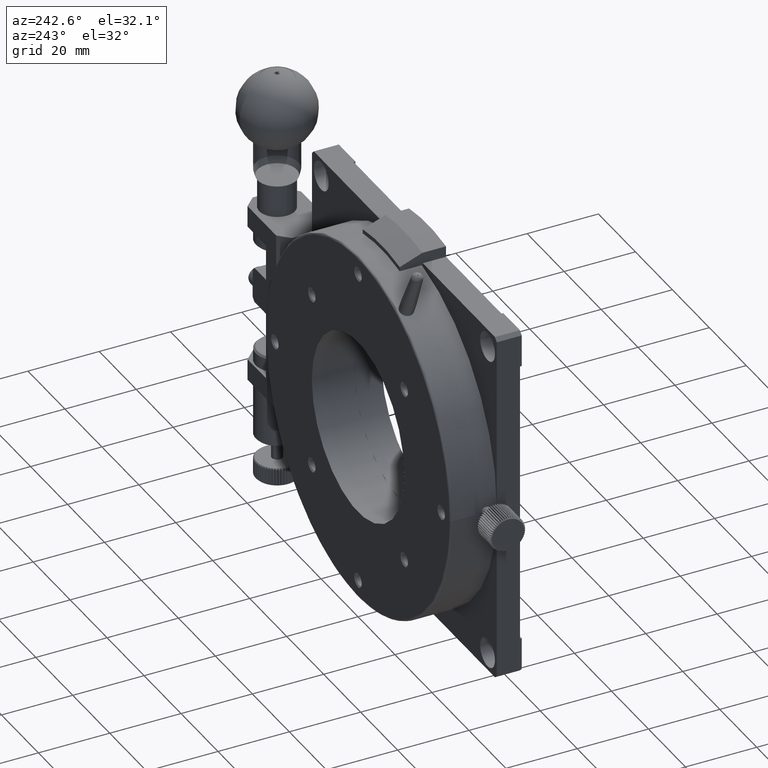
[diagram: clean part render]
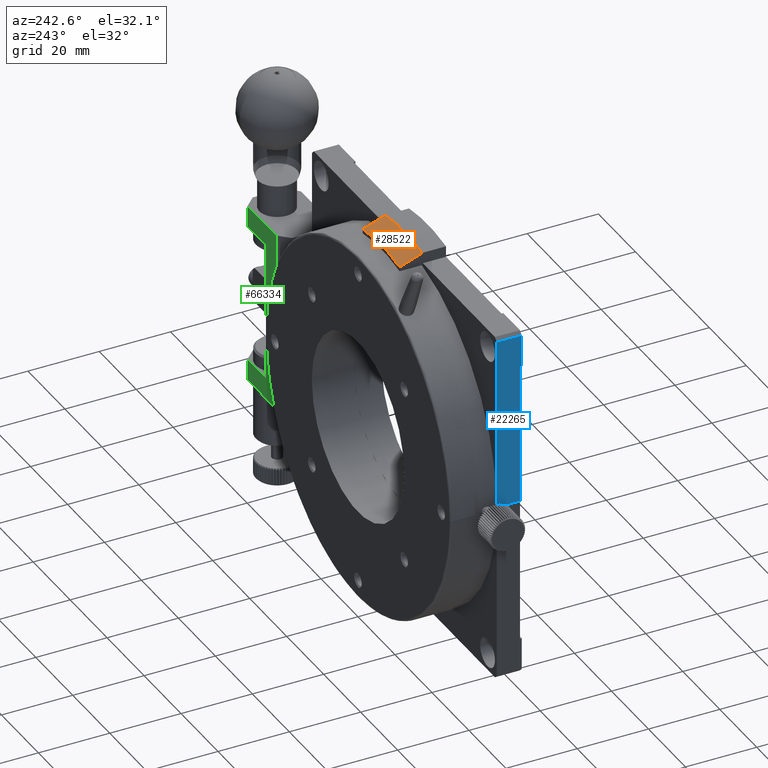
[diagram: same view with three faces highlighted in distinct colors, each labeled with its STEP entity id]
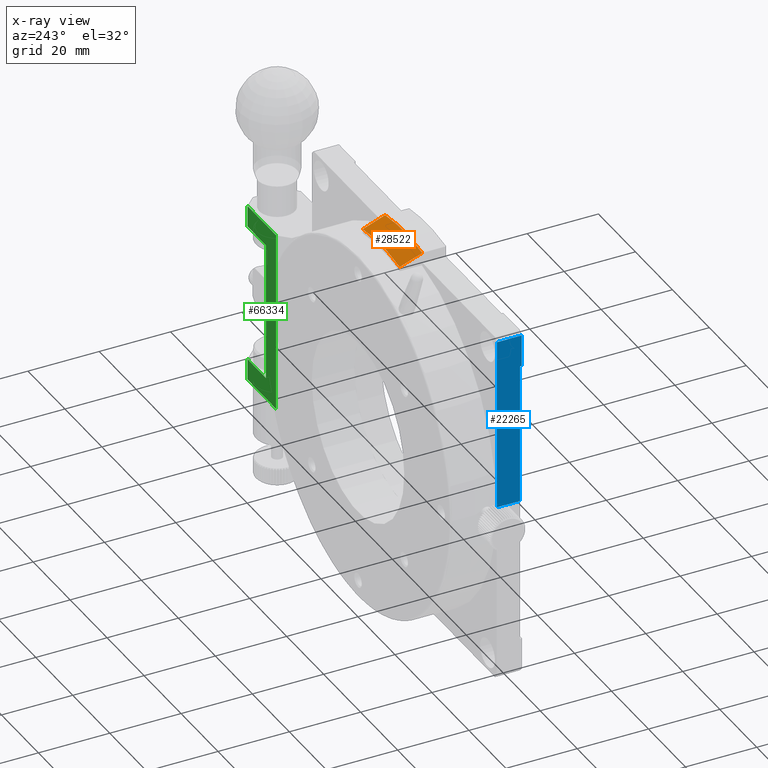
[diagram: x-ray of the same camera — body ghosted, the three highlighted faces saturated]
A machine part, auxiliary view with three faces highlighted in distinct colors.
The next image is the same camera in x-ray (body ghosted, the three faces saturated) — at least one of them is partly hidden behind the body in this view.
Their STEP definitions:

[orange] entity #28522 — the highlighted conical surface has half-angle 20 deg.
#240 = VERTEX_POINT ( 'NONE', #88215 ) ;
#344 = EDGE_CURVE ( 'NONE', #7674, #240, #38973, .T. ) ;
#2834 = CARTESIAN_POINT ( 'NONE',  ( -10.00000000000000000, 11.40492623373130776, 51.48253395153402323 ) ) ;
#7383 = DIRECTION ( 'NONE',  ( 0.000000000000000000, 0.000000000000000000, -1.000000000000000000 ) ) ;
#7554 = ORIENTED_EDGE ( 'NONE', *, *, #62984, .T. ) ;
#7674 = VERTEX_POINT ( 'NONE', #95971 ) ;
#9973 = CIRCLE ( 'NONE', #64506, 51.68198511713315213 ) ;
#10154 = CARTESIAN_POINT ( 'NONE',  ( 0.000000000000000000, 7.214153032672063759, 0.000000000000000000 ) ) ;
#14765 = CARTESIAN_POINT ( 'NONE',  ( 10.00000000000000000, 7.214153032672053101, 53.03531192297674579 ) ) ;
#22011 = DIRECTION ( 'NONE',  ( 0.000000000000000000, -1.000000000000000000, 0.000000000000000000 ) ) ;
#22382 = CARTESIAN_POINT ( 'NONE',  ( -10.00000000000000000, 13.50000000000000533, 50.70530135644174408 ) ) ;
#28522 = ADVANCED_FACE ( 'NONE', ( #76946 ), #88022, .T. ) ;
#29304 = CARTESIAN_POINT ( 'NONE',  ( 0.000000000000000000, 13.50000000000001243, 0.000000000000000000 ) ) ;
#29864 = CARTESIAN_POINT ( 'NONE',  ( 10.00000000000000000, 13.50000000000000533, 50.70530135644174408 ) ) ;
#32567 = DIRECTION ( 'NONE',  ( 0.000000000000000000, -1.000000000000000000, 0.000000000000000000 ) ) ;
#33538 = VERTEX_POINT ( 'NONE', #63273 ) ;
#36189 = EDGE_CURVE ( 'NONE', #240, #33538, #65181, .T. ) ;
#38973 = B_SPLINE_CURVE_WITH_KNOTS ( 'NONE', 3,
 ( #22382, #2834, #75049, #53082 ),
 .UNSPECIFIED., .F., .F.,
 ( 4, 4 ),
 ( 5.204170427930421283E-18, 0.006703791564244136400 ),
 .UNSPECIFIED. ) ;
#40370 = DIRECTION ( 'NONE',  ( 0.000000000000000000, 0.000000000000000000, -1.000000000000000000 ) ) ;
#44510 = CARTESIAN_POINT ( 'NONE',  ( 10.00000000000000000, 9.309634646354963294, 52.25917958909413841 ) ) ;
#49559 = B_SPLINE_CURVE_WITH_KNOTS ( 'NONE', 3,
 ( #14765, #44510, #73306, #29864 ),
 .UNSPECIFIED., .F., .F.,
 ( 4, 4 ),
 ( 3.469446951953614189E-18, 0.006703791564244133798 ),
 .UNSPECIFIED. ) ;
#53082 = CARTESIAN_POINT ( 'NONE',  ( -9.999999999999984013, 7.214153032672054877, 53.03531192297675290 ) ) ;
#54595 = EDGE_LOOP ( 'NONE', ( #90889, #7554, #68027, #85104 ) ) ;
#62984 = EDGE_CURVE ( 'NONE', #33538, #71816, #49559, .T. ) ;
#63265 = DIRECTION ( 'NONE',  ( -0.000000000000000000, 1.000000000000000000, -0.000000000000000000 ) ) ;
#63273 = CARTESIAN_POINT ( 'NONE',  ( 10.00000000000000000, 7.214153032672053101, 53.03531192297674579 ) ) ;
#64506 = AXIS2_PLACEMENT_3D ( 'NONE', #29304, #22011, #7383 ) ;
#65181 = CIRCLE ( 'NONE', #72965, 53.96984631039298819 ) ;
#68027 = ORIENTED_EDGE ( 'NONE', *, *, #69650, .T. ) ;
#69650 = EDGE_CURVE ( 'NONE', #71816, #7674, #9973, .T. ) ;
#71816 = VERTEX_POINT ( 'NONE', #81240 ) ;
#72965 = AXIS2_PLACEMENT_3D ( 'NONE', #93016, #63265, #78339 ) ;
#73306 = CARTESIAN_POINT ( 'NONE',  ( 10.00000000000000000, 11.40492623373131131, 51.48253395153402323 ) ) ;
#75049 = CARTESIAN_POINT ( 'NONE',  ( -10.00000000000000000, 9.309634646354963294, 52.25917958909413841 ) ) ;
#76946 = FACE_OUTER_BOUND ( 'NONE', #54595, .T. ) ;
#78339 = DIRECTION ( 'NONE',  ( 3.552713678800500929E-15, 4.821368582374721934E-17, -1.000000000000000000 ) ) ;
#80195 = AXIS2_PLACEMENT_3D ( 'NONE', #10154, #32567, #40370 ) ;
#81240 = CARTESIAN_POINT ( 'NONE',  ( 10.00000000000000000, 13.50000000000000533, 50.70530135644174408 ) ) ;
#85104 = ORIENTED_EDGE ( 'NONE', *, *, #344, .T. ) ;
#88022 = CONICAL_SURFACE ( 'NONE', #80195, 53.96984631039298819, 0.3490658503988645078 ) ;
#88215 = CARTESIAN_POINT ( 'NONE',  ( -9.999999999999984013, 7.214153032672054877, 53.03531192297675290 ) ) ;
#90889 = ORIENTED_EDGE ( 'NONE', *, *, #36189, .T. ) ;
#93016 = CARTESIAN_POINT ( 'NONE',  ( 0.000000000000000000, 7.214153032672060206, 0.000000000000000000 ) ) ;
#95971 = CARTESIAN_POINT ( 'NONE',  ( -10.00000000000000000, 13.50000000000000533, 50.70530135644174408 ) ) ;

[blue] entity #22265 — the highlighted planar face has unit normal (1, 0, 0).
#290 = CARTESIAN_POINT ( 'NONE',  ( -49.99773725805609814, 7.000000000000000888, -49.00042980575020124 ) ) ;
#2345 = FACE_OUTER_BOUND ( 'NONE', #12652, .T. ) ;
#2629 = ORIENTED_EDGE ( 'NONE', *, *, #35590, .T. ) ;
#4270 = CARTESIAN_POINT ( 'NONE',  ( -49.99773725805609104, 0.5000000000000004441, 0.4756774898927784712 ) ) ;
#4326 = VERTEX_POINT ( 'NONE', #14967 ) ;
#6185 = EDGE_CURVE ( 'NONE', #21113, #82262, #56156, .T. ) ;
#6848 = VERTEX_POINT ( 'NONE', #4270 ) ;
#7593 = DIRECTION ( 'NONE',  ( -0.000000000000000000, -0.000000000000000000, 1.000000000000000000 ) ) ;
#10166 = VECTOR ( 'NONE', #39227, 1000.000000000000000 ) ;
#12652 = EDGE_LOOP ( 'NONE', ( #25982, #60914, #18307, #92762, #2629, #27159 ) ) ;
#14967 = CARTESIAN_POINT ( 'NONE',  ( -49.99773725805609104, 6.999999999999999112, 0.4756774898927791928 ) ) ;
#18307 = ORIENTED_EDGE ( 'NONE', *, *, #77176, .F. ) ;
#21113 = VERTEX_POINT ( 'NONE', #29298 ) ;
#22265 = ADVANCED_FACE ( 'NONE', ( #2345 ), #53068, .F. ) ;
#22857 = DIRECTION ( 'NONE',  ( 0.000000000000000000, 0.000000000000000000, -1.000000000000000000 ) ) ;
#23605 = EDGE_CURVE ( 'NONE', #38609, #21113, #75762, .T. ) ;
#25010 = DIRECTION ( 'NONE',  ( 0.000000000000000000, 1.000000000000000000, 0.000000000000000000 ) ) ;
#25982 = ORIENTED_EDGE ( 'NONE', *, *, #23605, .F. ) ;
#27159 = ORIENTED_EDGE ( 'NONE', *, *, #6185, .F. ) ;
#29135 = VECTOR ( 'NONE', #46202, 1000.000000000000000 ) ;
#29298 = CARTESIAN_POINT ( 'NONE',  ( -49.99773725805609814, 0.000000000000000000, 40.00000000000000711 ) ) ;
#30014 = VECTOR ( 'NONE', #61618, 1000.000000000000000 ) ;
#30048 = CARTESIAN_POINT ( 'NONE',  ( -49.99773725805609814, 0.5000000000000000000, 40.00000000000000000 ) ) ;
#35590 = EDGE_CURVE ( 'NONE', #6848, #82262, #38310, .T. ) ;
#38310 = LINE ( 'NONE', #74922, #60320 ) ;
#38609 = VERTEX_POINT ( 'NONE', #92632 ) ;
#39227 = DIRECTION ( 'NONE',  ( -0.000000000000000000, 1.000000000000000000, -0.000000000000000000 ) ) ;
#46202 = DIRECTION ( 'NONE',  ( 0.000000000000000000, -1.000000000000000000, -0.000000000000000000 ) ) ;
#47587 = EDGE_CURVE ( 'NONE', #65379, #38609, #61786, .T. ) ;
#50230 = AXIS2_PLACEMENT_3D ( 'NONE', #82347, #82825, #22857 ) ;
#53068 = PLANE ( 'NONE',  #50230 ) ;
#56156 = LINE ( 'NONE', #91858, #63740 ) ;
#59878 = CARTESIAN_POINT ( 'NONE',  ( -49.99773725805609814, 2.500000000000000000, 48.99957019424980587 ) ) ;
#60320 = VECTOR ( 'NONE', #75385, 1000.000000000000000 ) ;
#60346 = CARTESIAN_POINT ( 'NONE',  ( -49.99773725805609814, 7.000000000000001776, 48.99957019424980587 ) ) ;
#60914 = ORIENTED_EDGE ( 'NONE', *, *, #47587, .F. ) ;
#61618 = DIRECTION ( 'NONE',  ( 0.000000000000000000, 0.000000000000000000, -1.000000000000000000 ) ) ;
#61786 = LINE ( 'NONE', #59878, #29135 ) ;
#63740 = VECTOR ( 'NONE', #25010, 1000.000000000000000 ) ;
#64657 = EDGE_CURVE ( 'NONE', #6848, #4326, #85508, .T. ) ;
#64864 = VECTOR ( 'NONE', #7593, 1000.000000000000000 ) ;
#65379 = VERTEX_POINT ( 'NONE', #60346 ) ;
#68003 = CARTESIAN_POINT ( 'NONE',  ( -49.99773725805609814, 0.000000000000000000, -49.00042980575020124 ) ) ;
#74922 = CARTESIAN_POINT ( 'NONE',  ( -49.99773725805609814, 0.5000000000000000000, 0.000000000000000000 ) ) ;
#75385 = DIRECTION ( 'NONE',  ( 0.000000000000000000, -0.000000000000000000, 1.000000000000000000 ) ) ;
#75762 = LINE ( 'NONE', #68003, #30014 ) ;
#76284 = CARTESIAN_POINT ( 'NONE',  ( -49.99773725805607683, -50.00000000000000000, 0.4756774898937063956 ) ) ;
#77176 = EDGE_CURVE ( 'NONE', #4326, #65379, #84113, .T. ) ;
#82262 = VERTEX_POINT ( 'NONE', #30048 ) ;
#82347 = CARTESIAN_POINT ( 'NONE',  ( -49.99773725805609814, 2.500000000000000000, -49.00042980575020124 ) ) ;
#82825 = DIRECTION ( 'NONE',  ( 1.000000000000000000, 0.000000000000000000, 0.000000000000000000 ) ) ;
#84113 = LINE ( 'NONE', #290, #64864 ) ;
#85508 = LINE ( 'NONE', #76284, #10166 ) ;
#91858 = CARTESIAN_POINT ( 'NONE',  ( -49.99773725805609814, 0.5000000000000000000, 40.00000000000000000 ) ) ;
#92632 = CARTESIAN_POINT ( 'NONE',  ( -49.99773725805609814, -2.891205793294678326E-16, 48.99957019424980587 ) ) ;
#92762 = ORIENTED_EDGE ( 'NONE', *, *, #64657, .F. ) ;

[green] entity #66334 — the highlighted planar face has unit normal (0, -1, 0).
#2 = ORIENTED_EDGE ( 'NONE', *, *, #69930, .F. ) ;
#127 = CARTESIAN_POINT ( 'NONE',  ( 68.50000000000000000, 15.50000000000000000, -25.50000000000000355 ) ) ;
#419 = CARTESIAN_POINT ( 'NONE',  ( 68.50000000000000000, 15.50000000000000000, 25.50000000000000355 ) ) ;
#1513 = VECTOR ( 'NONE', #36561, 1000.000000000000000 ) ;
#2802 = VERTEX_POINT ( 'NONE', #86007 ) ;
#5335 = DIRECTION ( 'NONE',  ( -1.000000000000000000, -0.000000000000000000, 0.000000000000000000 ) ) ;
#6109 = DIRECTION ( 'NONE',  ( -1.000000000000000000, -0.000000000000000000, 0.000000000000000000 ) ) ;
#9176 = CARTESIAN_POINT ( 'NONE',  ( 68.50000000000000000, 15.50000000000000000, 25.50000000000000355 ) ) ;
#11125 = ORIENTED_EDGE ( 'NONE', *, *, #86670, .F. ) ;
#13472 = CARTESIAN_POINT ( 'NONE',  ( 53.00000000000009948, 15.49999999999999822, 25.50000000000000355 ) ) ;
#13624 = CARTESIAN_POINT ( 'NONE',  ( 53.00000000000009948, 15.50000000000000000, 25.50000000000000355 ) ) ;
#13862 = VERTEX_POINT ( 'NONE', #9176 ) ;
#17294 = ORIENTED_EDGE ( 'NONE', *, *, #33020, .F. ) ;
#17903 = CARTESIAN_POINT ( 'NONE',  ( 68.50000000000000000, 15.50000000000000000, -19.49999999999999645 ) ) ;
#18057 = ORIENTED_EDGE ( 'NONE', *, *, #22157, .T. ) ;
#20719 = EDGE_LOOP ( 'NONE', ( #30261, #20802, #18057, #74338, #94890, #11125, #17294, #2 ) ) ;
#20802 = ORIENTED_EDGE ( 'NONE', *, *, #74869, .T. ) ;
#20889 = CARTESIAN_POINT ( 'NONE',  ( 0.000000000000000000, 15.50000000000000000, 25.50000000000000355 ) ) ;
#21443 = LINE ( 'NONE', #66836, #1513 ) ;
#22157 = EDGE_CURVE ( 'NONE', #39345, #67662, #28720, .T. ) ;
#22348 = LINE ( 'NONE', #419, #50225 ) ;
#27534 = LINE ( 'NONE', #34374, #94811 ) ;
#28720 = LINE ( 'NONE', #13624, #44004 ) ;
#29171 = CARTESIAN_POINT ( 'NONE',  ( 68.50000000000000000, 15.50000000000000000, 25.50000000000000355 ) ) ;
#30261 = ORIENTED_EDGE ( 'NONE', *, *, #54156, .F. ) ;
#33020 = EDGE_CURVE ( 'NONE', #46557, #92509, #61097, .T. ) ;
#34374 = CARTESIAN_POINT ( 'NONE',  ( 58.50000000000000000, 15.50000000000000000, 19.50000000000000000 ) ) ;
#35321 = VECTOR ( 'NONE', #76657, 1000.000000000000000 ) ;
#36561 = DIRECTION ( 'NONE',  ( -0.000000000000000000, 0.000000000000000000, 1.000000000000000000 ) ) ;
#37567 = VERTEX_POINT ( 'NONE', #17903 ) ;
#39345 = VERTEX_POINT ( 'NONE', #73469 ) ;
#43370 = DIRECTION ( 'NONE',  ( -0.000000000000000000, 0.000000000000000000, 1.000000000000000000 ) ) ;
#44004 = VECTOR ( 'NONE', #43370, 1000.000000000000000 ) ;
#45280 = DIRECTION ( 'NONE',  ( 0.000000000000000000, -0.000000000000000000, -1.000000000000000000 ) ) ;
#46557 = VERTEX_POINT ( 'NONE', #56841 ) ;
#50003 = CARTESIAN_POINT ( 'NONE',  ( 0.000000000000000000, 15.50000000000000000, -25.50000000000000355 ) ) ;
#50225 = VECTOR ( 'NONE', #74034, 1000.000000000000000 ) ;
#51156 = LINE ( 'NONE', #20889, #58775 ) ;
#53551 = CARTESIAN_POINT ( 'NONE',  ( 73.50000000000000000, 15.50000000000000000, -19.50000000000000000 ) ) ;
#54156 = EDGE_CURVE ( 'NONE', #74240, #37567, #22348, .T. ) ;
#55130 = VECTOR ( 'NONE', #68215, 1000.000000000000000 ) ;
#56841 = CARTESIAN_POINT ( 'NONE',  ( 58.50000000000000000, 15.50000000000000000, -19.49999999999999645 ) ) ;
#58775 = VECTOR ( 'NONE', #5335, 1000.000000000000000 ) ;
#59369 = EDGE_CURVE ( 'NONE', #13862, #67662, #51156, .T. ) ;
#61097 = LINE ( 'NONE', #84480, #35321 ) ;
#66334 = ADVANCED_FACE ( 'NONE', ( #66766 ), #96544, .F. ) ;
#66766 = FACE_OUTER_BOUND ( 'NONE', #20719, .T. ) ;
#66836 = CARTESIAN_POINT ( 'NONE',  ( 68.50000000000000000, 15.50000000000000000, 25.50000000000000355 ) ) ;
#67662 = VERTEX_POINT ( 'NONE', #13472 ) ;
#68215 = DIRECTION ( 'NONE',  ( -1.000000000000000000, -0.000000000000000000, 0.000000000000000000 ) ) ;
#69930 = EDGE_CURVE ( 'NONE', #37567, #46557, #90156, .T. ) ;
#70965 = DIRECTION ( 'NONE',  ( 1.000000000000000000, -0.000000000000000000, 0.000000000000000000 ) ) ;
#73397 = LINE ( 'NONE', #50003, #86449 ) ;
#73469 = CARTESIAN_POINT ( 'NONE',  ( 53.00000000000009948, 15.49999999999999822, -25.50000000000000355 ) ) ;
#74034 = DIRECTION ( 'NONE',  ( -0.000000000000000000, 0.000000000000000000, 1.000000000000000000 ) ) ;
#74240 = VERTEX_POINT ( 'NONE', #127 ) ;
#74338 = ORIENTED_EDGE ( 'NONE', *, *, #59369, .F. ) ;
#74869 = EDGE_CURVE ( 'NONE', #74240, #39345, #73397, .T. ) ;
#75211 = AXIS2_PLACEMENT_3D ( 'NONE', #29171, #88192, #45280 ) ;
#76657 = DIRECTION ( 'NONE',  ( -0.000000000000000000, -0.000000000000000000, 1.000000000000000000 ) ) ;
#84480 = CARTESIAN_POINT ( 'NONE',  ( 58.50000000000000000, 15.50000000000000000, -19.50000000000000000 ) ) ;
#86007 = CARTESIAN_POINT ( 'NONE',  ( 68.50000000000000000, 15.50000000000000000, 19.50000000000000000 ) ) ;
#86449 = VECTOR ( 'NONE', #6109, 1000.000000000000000 ) ;
#86670 = EDGE_CURVE ( 'NONE', #92509, #2802, #27534, .T. ) ;
#88192 = DIRECTION ( 'NONE',  ( 0.000000000000000000, -1.000000000000000000, 0.000000000000000000 ) ) ;
#89030 = EDGE_CURVE ( 'NONE', #2802, #13862, #21443, .T. ) ;
#90156 = LINE ( 'NONE', #53551, #55130 ) ;
#92509 = VERTEX_POINT ( 'NONE', #96115 ) ;
#94811 = VECTOR ( 'NONE', #70965, 1000.000000000000000 ) ;
#94890 = ORIENTED_EDGE ( 'NONE', *, *, #89030, .F. ) ;
#96115 = CARTESIAN_POINT ( 'NONE',  ( 58.50000000000000000, 15.50000000000000000, 19.50000000000000000 ) ) ;
#96544 = PLANE ( 'NONE',  #75211 ) ;